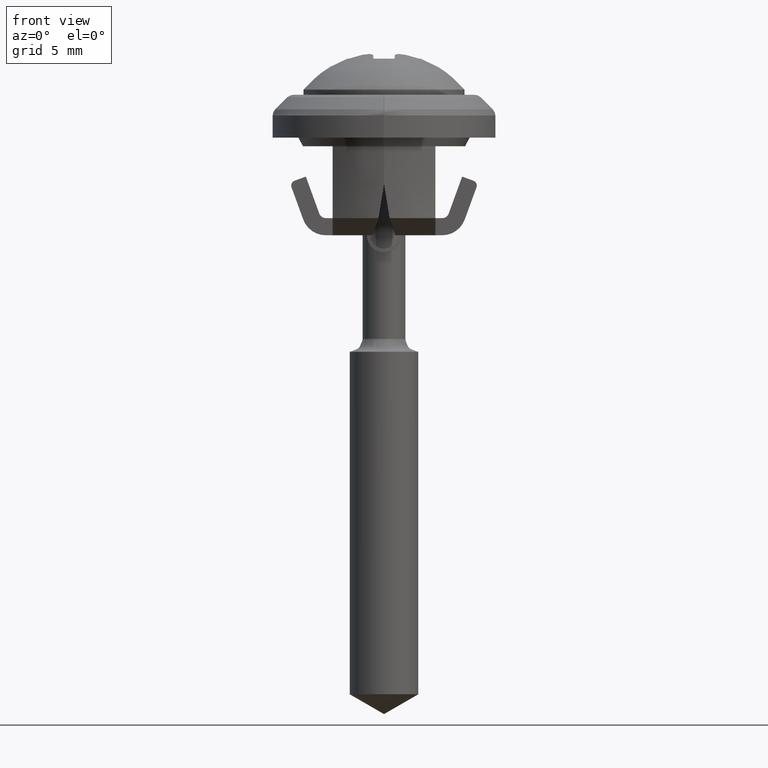
[diagram: clean part render]
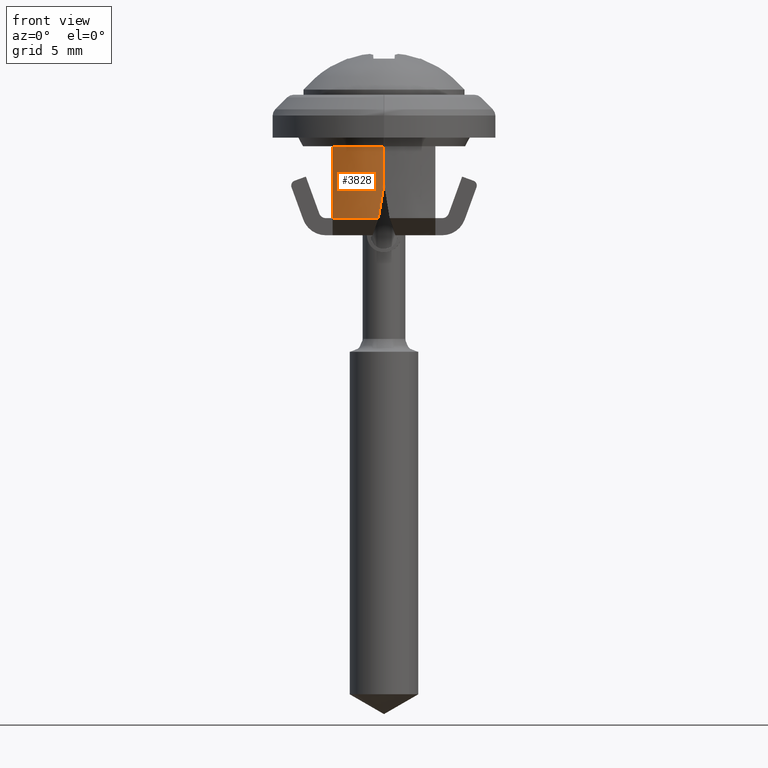
[diagram: same view with one face highlighted and labeled with its STEP entity id]
A machine part, front view. The second image highlights one B-rep face of the part: STEP entity #3828.
In plain terms, the highlighted face is a freeform B-spline surface patch.
Its self-contained STEP definition (entity closure, byte-faithful):
#2973=CARTESIAN_POINT('',(-3.000000000000055,-3.682729965651915,-3.0));
#2974=VERTEX_POINT('',#2973);
#3030=CARTESIAN_POINT('',(-3.0,-3.682729965668650,-7.199999999961760));
#3031=VERTEX_POINT('',#3030);
#3045=CARTESIAN_POINT('',(-3.0,-3.682729965668650,-7.199999999961760));
#3046=CARTESIAN_POINT('',(-3.000000000000055,-3.682729965651915,-3.0));
#3047=QUASI_UNIFORM_CURVE('',1,(#3045,#3046),.UNSPECIFIED.,.F.,.U.);
#3048=EDGE_CURVE('',#3031,#2974,#3047,.T.);
#3699=CARTESIAN_POINT('',(-0.010000000000000,-4.749989473663170,-3.0));
#3700=VERTEX_POINT('',#3699);
#3715=CARTESIAN_POINT('',(-0.010000000000000,-4.749989473663170,-3.0));
#3716=CARTESIAN_POINT('',(-0.296615237654652,-4.749415988039734,-3.0));
#3717=CARTESIAN_POINT('',(-0.819146740607510,-4.700825536375586,-2.999999999999997));
#3718=CARTESIAN_POINT('',(-1.652940344793589,-4.481163909571094,-3.000000000000005));
#3719=CARTESIAN_POINT('',(-2.374372228718182,-4.142677008986144,-3.000000000000004));
#3720=CARTESIAN_POINT('',(-2.830072934928173,-3.821155555395457,-2.999999999999992));
#3721=CARTESIAN_POINT('',(-3.000000000000055,-3.682729965651915,-3.0));
#3722=B_SPLINE_CURVE_WITH_KNOTS('',3,(#3715,#3716,#3717,#3718,#3719,#3720,#3721),.UNSPECIFIED.,.F.,.U.,(4,1,1,1,4),(2.492912E-009,0.859843753163533,1.567951611341667,2.579531761872771,3.237058565831316),.UNSPECIFIED.);
#3723=EDGE_CURVE('',#3700,#2974,#3722,.T.);
#3742=CARTESIAN_POINT('',(-0.331659969819236,-4.738407080902940,-7.199999999961760));
#3743=VERTEX_POINT('',#3742);
#3751=CARTESIAN_POINT('',(-0.331659969819236,-4.738407080902940,-7.199999999961760));
#3752=CARTESIAN_POINT('',(-0.619435293509651,-4.718295581754568,-7.199999999961773));
#3753=CARTESIAN_POINT('',(-1.085938857078398,-4.642489653405805,-7.199999999961782));
#3754=CARTESIAN_POINT('',(-1.737760548173268,-4.433969981573834,-7.199999999961717));
#3755=CARTESIAN_POINT('',(-2.358973297372323,-4.145862552103262,-7.199999999961841));
#3756=CARTESIAN_POINT('',(-2.776358659003924,-3.864947843952603,-7.199999999961708));
#3757=CARTESIAN_POINT('',(-3.0,-3.682729965668650,-7.199999999961760));
#3758=B_SPLINE_CURVE_WITH_KNOTS('',3,(#3751,#3752,#3753,#3754,#3755,#3756,#3757),.UNSPECIFIED.,.F.,.U.,(4,1,1,1,4),(3.344627E-009,0.865427689085365,1.412016284670848,2.049696712217979,2.915124397958843),.UNSPECIFIED.);
#3759=EDGE_CURVE('',#3743,#3031,#3758,.T.);
#3782=CARTESIAN_POINT('',(-3.120518089115430,-3.581182326470177,-2.895000000000956));
#3783=CARTESIAN_POINT('',(-3.120518089115430,-3.581182326470177,-7.307624999960781));
#3784=CARTESIAN_POINT('',(-1.714887908349366,-4.805999720788796,-2.895000000000957));
#3785=CARTESIAN_POINT('',(-1.714887908349366,-4.805999720788796,-7.307624999960779));
#3786=CARTESIAN_POINT('',(0.148595952026088,-4.747675140841086,-2.895000000000955));
#3787=CARTESIAN_POINT('',(0.148595952026088,-4.747675140841086,-7.307624999960781));
#3795=(BOUNDED_SURFACE()B_SPLINE_SURFACE(1,2,((#3782,#3784,#3786),(#3783,#3785,#3787)),.UNSPECIFIED.,.F.,.F.,.U.)B_SPLINE_SURFACE_WITH_KNOTS((2,2),(3,3),(0.0,4.412624999959825),(0.0,3.595268433672322),.UNSPECIFIED.)GEOMETRIC_REPRESENTATION_ITEM()RATIONAL_B_SPLINE_SURFACE(((0.998062951976478,0.925944985310903,0.991381339341826),(0.998062951976478,0.925944985310903,0.991381339341826)))REPRESENTATION_ITEM('')SURFACE());
#3796=CARTESIAN_POINT('',(-0.010000000000000,-4.749989473663560,-5.261925327272481));
#3797=VERTEX_POINT('',#3796);
#3798=CARTESIAN_POINT('',(-0.314799795920556,-4.739557056140040,-7.149164662941760));
#3799=VERTEX_POINT('',#3798);
#3800=CARTESIAN_POINT('',(-0.010000000000000,-4.749989473663560,-5.261925327272481));
#3801=CARTESIAN_POINT('',(-0.162567440254736,-4.749668278334188,-6.206582372469971));
#3802=CARTESIAN_POINT('',(-0.314799795921355,-4.739557056140040,-7.149164662946707));
#3810=(BOUNDED_CURVE()B_SPLINE_CURVE(2,(#3800,#3801,#3802),.UNSPECIFIED.,.F.,.U.)CURVE()GEOMETRIC_REPRESENTATION_ITEM()QUASI_UNIFORM_CURVE()RATIONAL_B_SPLINE_CURVE((1.0,0.999484566606013,1.0))REPRESENTATION_ITEM(''));
#3811=EDGE_CURVE('',#3797,#3799,#3810,.T.);
#3812=ORIENTED_EDGE('',*,*,#3811,.F.);
#3813=CARTESIAN_POINT('',(-0.010000000000000,-4.749989473663170,-3.0));
#3814=CARTESIAN_POINT('',(-0.010000000000000,-4.749989473663560,-5.261925327272481));
#3815=QUASI_UNIFORM_CURVE('',1,(#3813,#3814),.UNSPECIFIED.,.F.,.U.);
#3816=EDGE_CURVE('',#3700,#3797,#3815,.T.);
#3817=ORIENTED_EDGE('',*,*,#3816,.F.);
#3818=ORIENTED_EDGE('',*,*,#3723,.T.);
#3819=ORIENTED_EDGE('',*,*,#3048,.F.);
#3820=ORIENTED_EDGE('',*,*,#3759,.F.);
#3821=CARTESIAN_POINT('',(-0.314799795920556,-4.739557056140040,-7.149164662941760));
#3822=CARTESIAN_POINT('',(-0.331659969819236,-4.738407080902940,-7.199999999961760));
#3823=QUASI_UNIFORM_CURVE('',1,(#3821,#3822),.UNSPECIFIED.,.F.,.U.);
#3824=EDGE_CURVE('',#3799,#3743,#3823,.T.);
#3825=ORIENTED_EDGE('',*,*,#3824,.F.);
#3826=EDGE_LOOP('',(#3812,#3817,#3818,#3819,#3820,#3825));
#3827=FACE_OUTER_BOUND('',#3826,.T.);
#3828=ADVANCED_FACE('',(#3827),#3795,.T.);